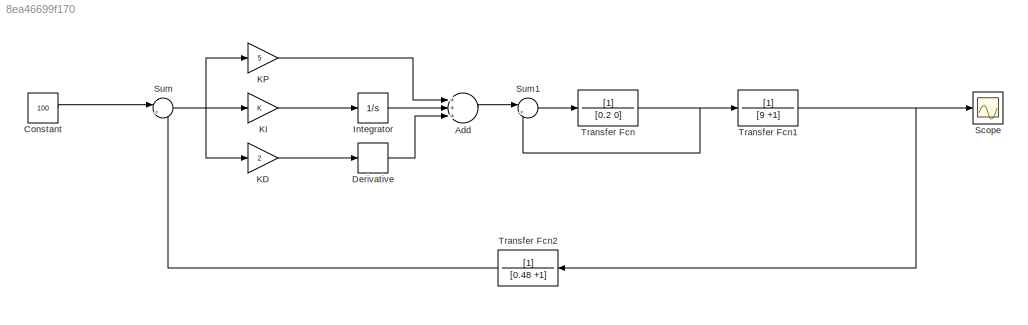
MODEL slx_8ea46699f170
KIND model
BLOCK [Sum] Add
  InputSameDT = off
  Inputs = +++
  OutDataTypeStr = Inherit: Inherit via internal rule
  Ports = [3, 1]
  SaturateOnIntegerOverflow = off
BLOCK [Constant] Constant
  Value = 100
BLOCK [Derivative] Derivative
BLOCK [Integrator] Integrator
  Ports = [1, 1]
BLOCK [Gain] KD
  Gain = 2
  OutDataTypeStr = Inherit: Inherit via internal rule
  ParamDataTypeStr = Inherit: Inherit via internal rule
  SaturateOnIntegerOverflow = off
BLOCK [Gain] KI
  OutDataTypeStr = Inherit: Inherit via internal rule
  ParamDataTypeStr = Inherit: Inherit via internal rule
  SaturateOnIntegerOverflow = off
BLOCK [Gain] KP
  Gain = 5
  OutDataTypeStr = Inherit: Inherit via internal rule
  ParamDataTypeStr = Inherit: Inherit via internal rule
  SaturateOnIntegerOverflow = off
BLOCK [Scope] Scope
  Floating = off
  NumInputPorts = 1
  Ports = [1]
  ShowLegends = off
BLOCK [Sum] Sum
  IconShape = round
  InputSameDT = off
  Inputs = |+-
  OutDataTypeStr = Inherit: Inherit via internal rule
  Ports = [2, 1]
  SaturateOnIntegerOverflow = off
BLOCK [Sum] Sum1
  IconShape = round
  InputSameDT = off
  Inputs = |+-
  OutDataTypeStr = Inherit: Inherit via internal rule
  Ports = [2, 1]
  SaturateOnIntegerOverflow = off
BLOCK [TransferFcn] Transfer Fcn
  Denominator = [0.2 0]
BLOCK [TransferFcn] Transfer Fcn1
  Denominator = [9 +1]
BLOCK [TransferFcn] Transfer Fcn2
  Denominator = [0.48 +1]
LINE Add:1 -> Sum1:1
LINE Constant:1 -> Sum:1
LINE Derivative:1 -> Add:3
LINE Integrator:1 -> Add:2
LINE KD:1 -> Derivative:1
LINE KI:1 -> Integrator:1
LINE KP:1 -> Add:1
LINE Sum1:1 -> Transfer Fcn:1
NET Sum:1 -> KD:1, KI:1, KP:1
NET Transfer Fcn1:1 -> Scope:1, Transfer Fcn2:1
LINE Transfer Fcn2:1 -> Sum:2
NET Transfer Fcn:1 -> Sum1:2, Transfer Fcn1:1
note: NET lines group one-source signal fan-out (src -> all destinations, sorted); 1:1 wires keep LINE
